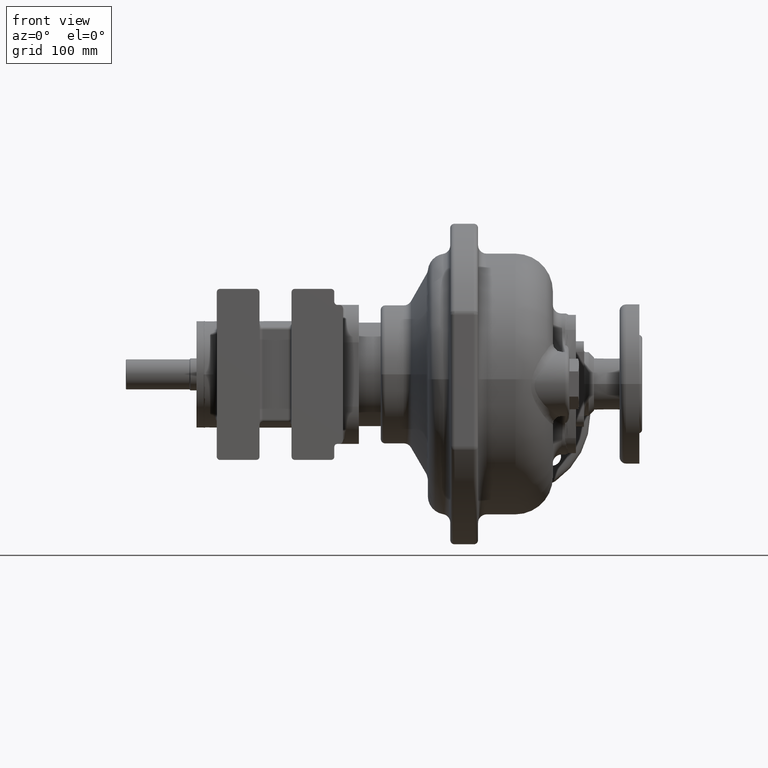
[diagram: clean part render]
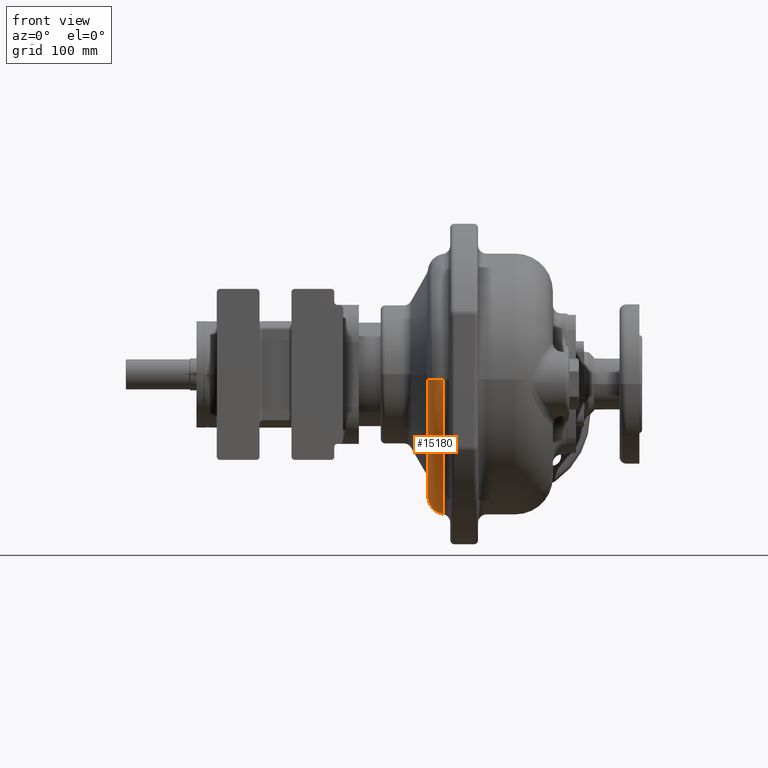
[diagram: same view with one face highlighted and labeled with its STEP entity id]
A machine part, front view. The second image highlights one B-rep face of the part: STEP entity #15180.
In plain terms, the highlighted toroidal blend (fillet) surface has major radius 109.5 mm and minor (blend) radius 17 mm.
Its self-contained STEP definition (entity closure, byte-faithful):
#2435=CARTESIAN_POINT('',(-5.75E1,4.5E0,-4.5E0));
#2436=DIRECTION('',(-1.E0,0.E0,0.E0));
#2437=DIRECTION('',(0.E0,0.E0,-1.E0));
#2438=AXIS2_PLACEMENT_3D('',#2435,#2436,#2437);
#2483=CARTESIAN_POINT('',(-4.05E1,-1.05E2,-4.5E0));
#2484=DIRECTION('',(0.E0,0.E0,1.E0));
#2485=DIRECTION('',(-1.E0,0.E0,0.E0));
#2486=AXIS2_PLACEMENT_3D('',#2483,#2484,#2485);
#2786=CARTESIAN_POINT('',(-4.322E1,4.5E0,-4.5E0));
#2787=DIRECTION('',(1.E0,0.E0,0.E0));
#2788=DIRECTION('',(0.E0,-1.E0,0.E0));
#2789=AXIS2_PLACEMENT_3D('',#2786,#2787,#2788);
#2791=CARTESIAN_POINT('',(-4.05E1,4.5E0,-1.14E2));
#2792=DIRECTION('',(0.E0,-1.E0,0.E0));
#2793=DIRECTION('',(-1.E0,0.E0,0.E0));
#2794=AXIS2_PLACEMENT_3D('',#2791,#2792,#2793);
#10511=CARTESIAN_POINT('',(-5.75E1,4.5E0,-1.14E2));
#10512=VERTEX_POINT('',#10511);
#10513=CARTESIAN_POINT('',(-5.75E1,-1.05E2,-4.500000000001E0));
#10514=VERTEX_POINT('',#10513);
#10543=CARTESIAN_POINT('',(-4.322E1,-1.217809892438E2,-4.5E0));
#10544=VERTEX_POINT('',#10543);
#10547=CARTESIAN_POINT('',(-4.322E1,4.5E0,-1.307809892438E2));
#10548=VERTEX_POINT('',#10547);
#15169=CARTESIAN_POINT('',(-4.05E1,4.5E0,-4.5E0));
#15170=DIRECTION('',(-1.E0,0.E0,0.E0));
#15171=DIRECTION('',(0.E0,1.215557309259E-4,-9.999999926121E-1));
#15172=AXIS2_PLACEMENT_3D('',#15169,#15170,#15171);
#15173=TOROIDAL_SURFACE('',#15172,1.095E2,1.7E1);
#15174=ORIENTED_EDGE('',*,*,#15159,.T.);
#15175=ORIENTED_EDGE('',*,*,#15135,.F.);
#15176=ORIENTED_EDGE('',*,*,#14519,.T.);
#15177=ORIENTED_EDGE('',*,*,#14549,.T.);
#15178=EDGE_LOOP('',(#15174,#15175,#15176,#15177));
#15179=FACE_OUTER_BOUND('',#15178,.F.);
#15180=ADVANCED_FACE('',(#15179),#15173,.T.);
#2439=CIRCLE('',#2438,1.095E2);
#2487=CIRCLE('',#2486,1.7E1);
#2790=CIRCLE('',#2789,1.262809892438E2);
#2795=CIRCLE('',#2794,1.7E1);
#14519=EDGE_CURVE('',#10512,#10514,#2439,.T.);
#14549=EDGE_CURVE('',#10514,#10544,#2487,.T.);
#15135=EDGE_CURVE('',#10512,#10548,#2795,.T.);
#15159=EDGE_CURVE('',#10544,#10548,#2790,.T.);